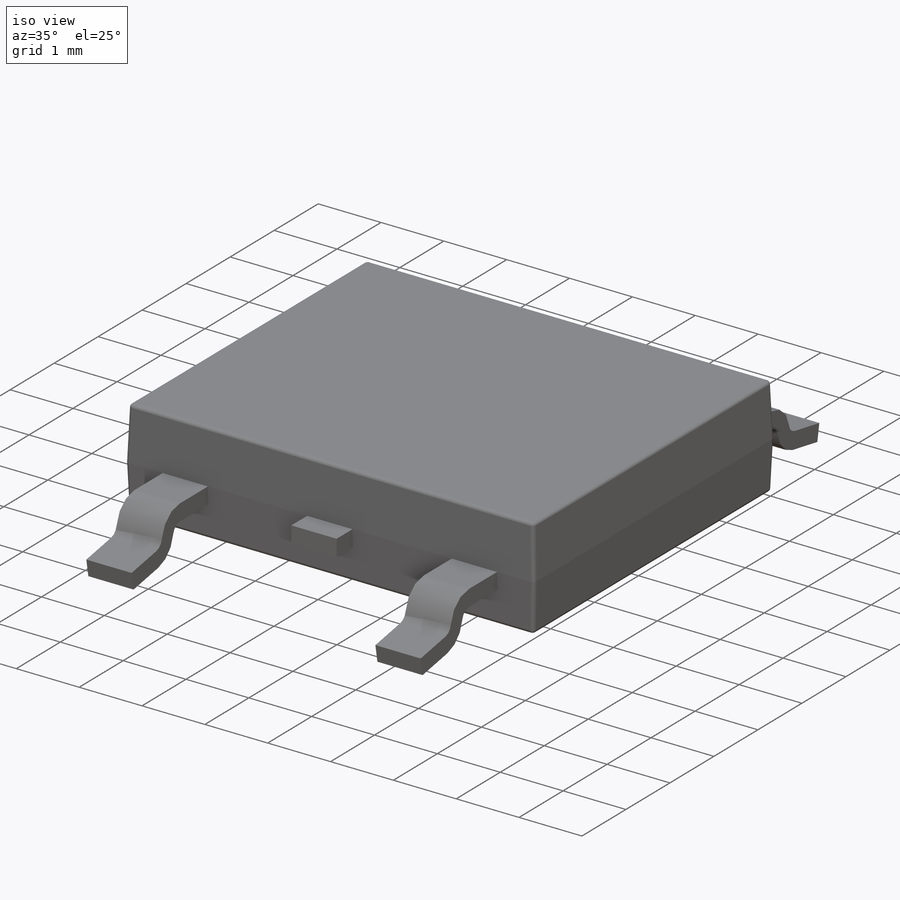
[diagram: iso view]
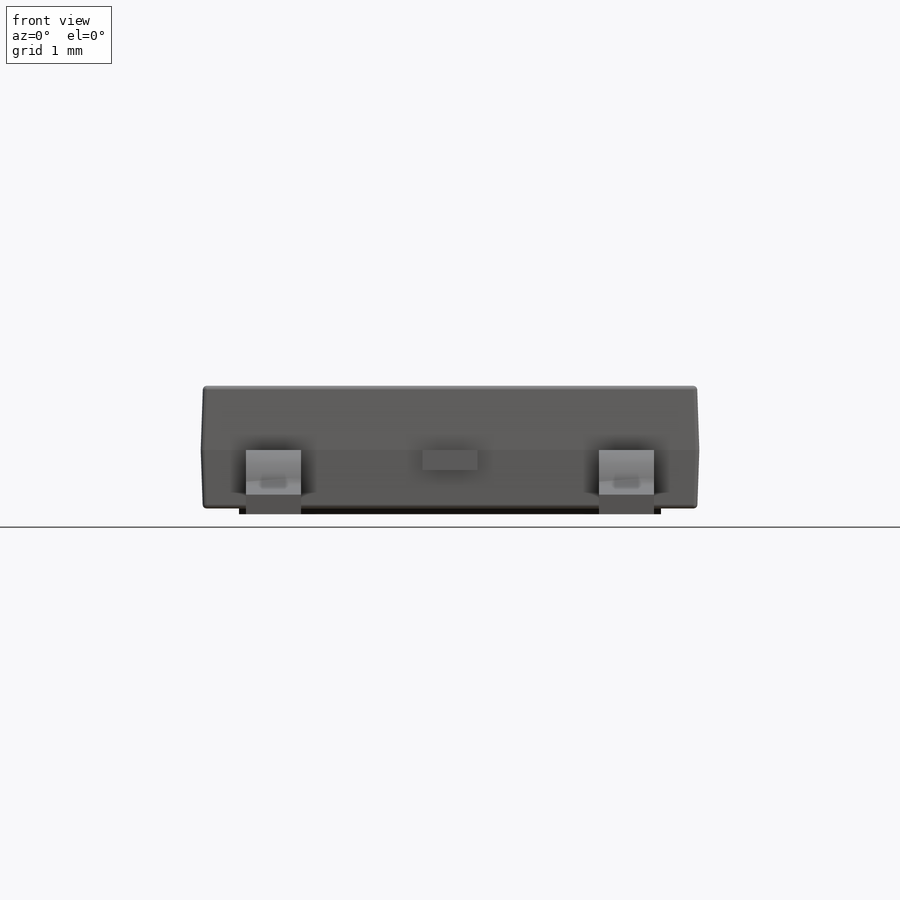
[diagram: front view]
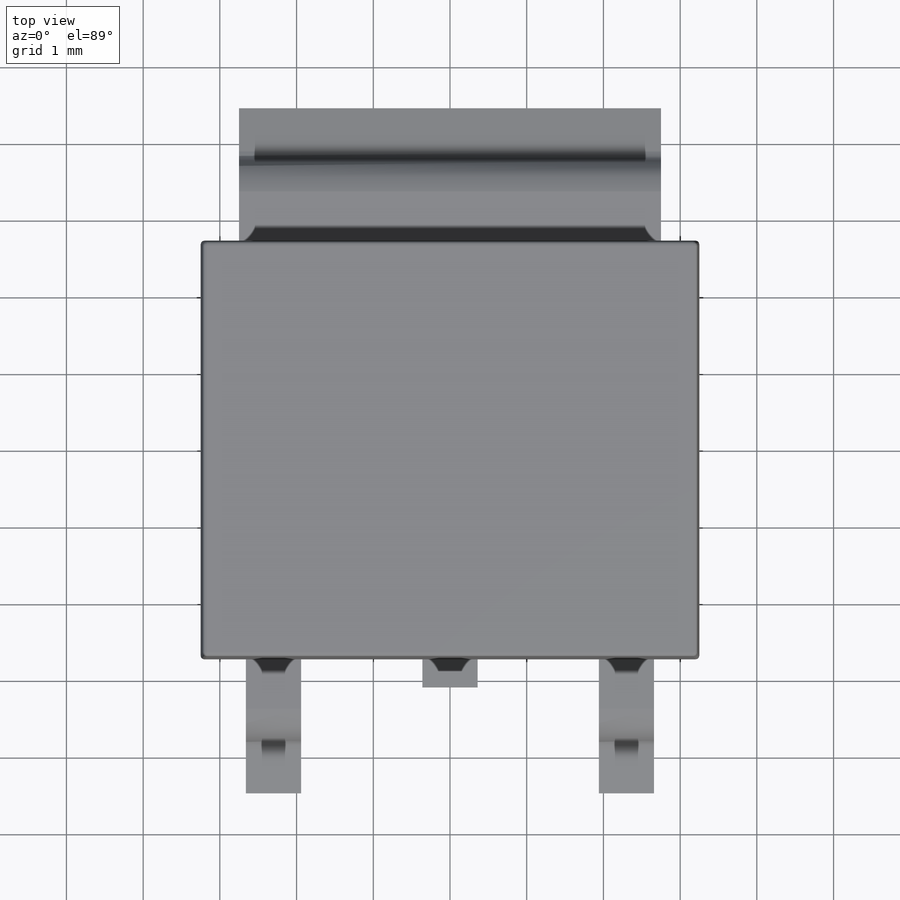
[diagram: top view]
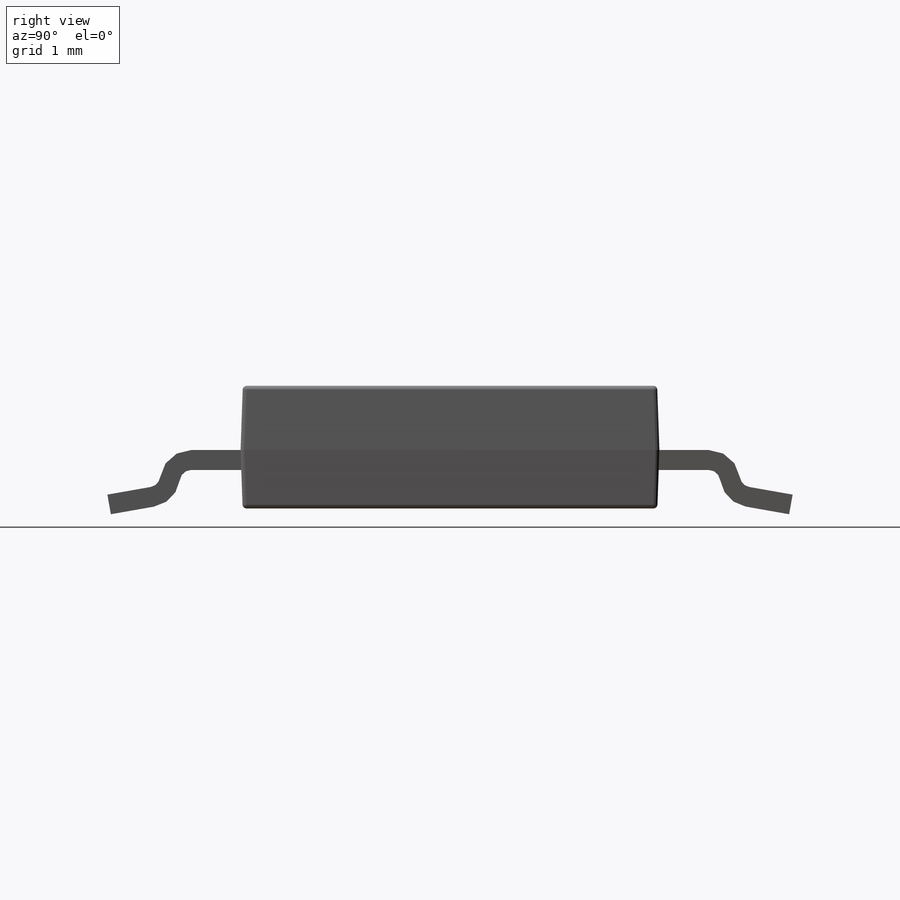
[diagram: right view]
SOLIDWORKS PART (.sldprt)
format: sldprt  version: not decoded by parser v0  size: 264,192 bytes
history: native  units: mm
features: sketch x5, extrude x3, material x1, fillet x1, pattern_linear x1, plane x1, cut_extrude x1 (+12 scaffold rows collapsed)
feature tree (25):
  scaffold x12  (default folders/planes/origin — collapsed)
  material  "Material <not specified>"
  sketch  "Sketch1"  dims[D1=5.46mm D2=6.5mm]
  extrude  "Extrude1"  Depth=0.8375mm
  fillet  "Fillet1"  Radius=0.05mm
  sketch  "Sketch2"  dims[c1.D2=0.15mm c1.D3=0.15mm c1.D1=0.26mm c2.D3=0.9mm c2.D4=1.7mm c2.D5=~3.401508mm c3.D5=~165.973231deg c4.D5=1.675mm c4.D6=~0.054684mm c5.D6=10.0deg]
  extrude  "Extrude2"  Depth=0.72mm
  pattern_linear  "LPattern3"  Count1=2 Count2=2 Spacing1=2.3mm Spacing2=2.3mm
  sketch  "Sketch3"  dims[D1=0.0mm]
  extrude  "Extrude3"  Depth=5.5mm
  plane  "Contact Plane"
  sketch  "Sketch - Land Pattern"  dims[D1=3.3mm D2=1.5mm D3=6.3mm D4=2.3mm D5=1.0mm D6=2.3mm]
  sketch  "Esboço1"
  cut_extrude  "Corte-extrusão1"  Depth=10mm
decode coverage: 10 of 11 modeling features carry decoded parameters
note: ~ marks probable driven/reference dimensions
note: suppression state not decoded; provenance and decode notes live in map.json
